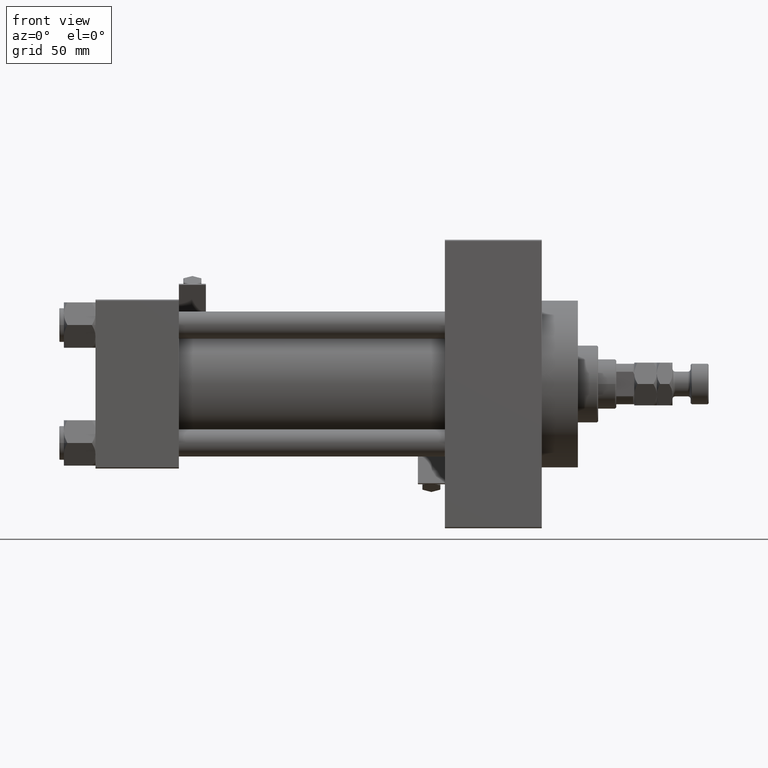
[diagram: clean part render]
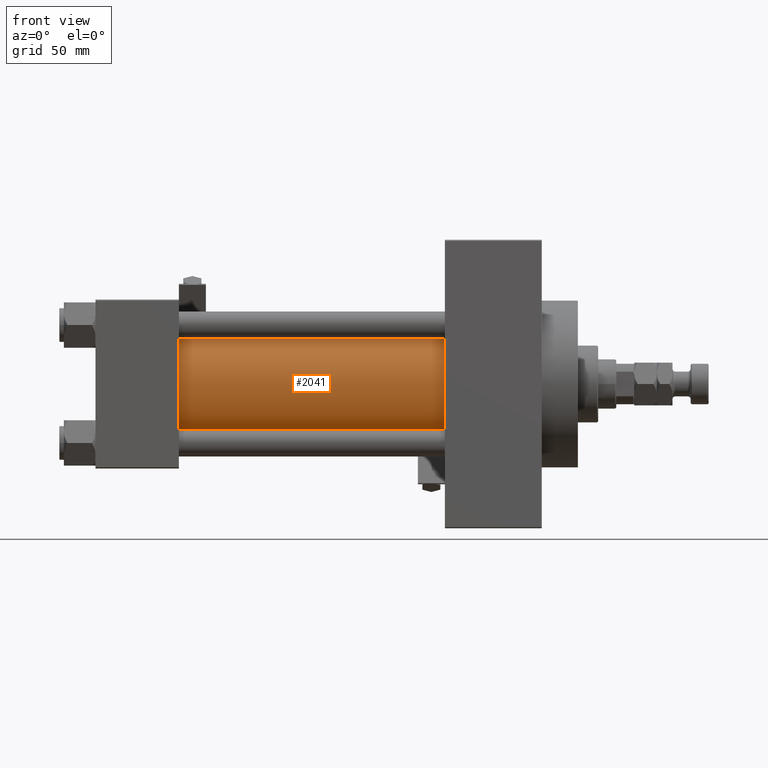
[diagram: same view with one face highlighted and labeled with its STEP entity id]
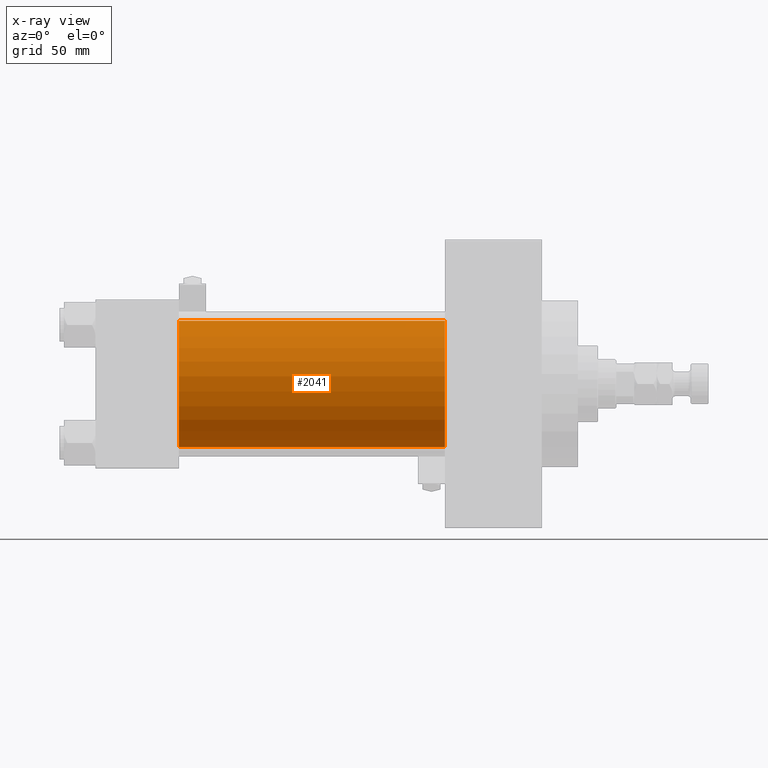
[diagram: x-ray of the same camera — body ghosted, the highlighted face saturated]
A machine part, front view. The second image highlights one B-rep face of the part: STEP entity #2041.
The next image is the same camera in x-ray: the body ghosted, the highlighted face saturated — about 0% of this face is hidden behind the body in this view.
In plain terms, the highlighted cylindrical surface (partial cylindrical patch) has radius 28 mm, axis along (-1, -0, -0).
Its self-contained STEP definition (entity closure, byte-faithful):
#843 = CARTESIAN_POINT ( 'NONE',  ( 155.0000000000000000, -2.602085213965210642E-15, 0.000000000000000000 ) ) ;
#1912 = VECTOR ( 'NONE', #42729, 1000.000000000000000 ) ;
#2041 = ADVANCED_FACE ( 'NONE', ( #5123 ), #31864, .T. ) ;
#3669 = AXIS2_PLACEMENT_3D ( 'NONE', #14880, #48718, #26242 ) ;
#4635 = DIRECTION ( 'NONE',  ( -1.000000000000000000, -0.000000000000000000, -0.000000000000000000 ) ) ;
#4957 = CIRCLE ( 'NONE', #5753, 28.00000000000000000 ) ;
#5123 = FACE_OUTER_BOUND ( 'NONE', #19141, .T. ) ;
#5753 = AXIS2_PLACEMENT_3D ( 'NONE', #21115, #36507, #17340 ) ;
#8190 = EDGE_CURVE ( 'NONE', #29297, #16912, #4957, .T. ) ;
#12117 = LINE ( 'NONE', #23728, #49090 ) ;
#14880 = CARTESIAN_POINT ( 'NONE',  ( 155.0000000000000000, -2.602085213965210642E-15, 0.000000000000000000 ) ) ;
#16912 = VERTEX_POINT ( 'NONE', #17766 ) ;
#17340 = DIRECTION ( 'NONE',  ( 0.000000000000000000, 0.000000000000000000, 1.000000000000000000 ) ) ;
#17766 = CARTESIAN_POINT ( 'NONE',  ( 37.00000000000000711, 8.269258236473784371E-16, -28.00000000000000000 ) ) ;
#18238 = ORIENTED_EDGE ( 'NONE', *, *, #33045, .T. ) ;
#18563 = AXIS2_PLACEMENT_3D ( 'NONE', #843, #4635, #39440 ) ;
#19141 = EDGE_LOOP ( 'NONE', ( #43602, #29717, #18238, #25632 ) ) ;
#21115 = CARTESIAN_POINT ( 'NONE',  ( 37.00000000000000711, -2.602085213965210642E-15, 0.000000000000000000 ) ) ;
#21538 = EDGE_CURVE ( 'NONE', #40945, #29531, #32660, .T. ) ;
#21798 = CARTESIAN_POINT ( 'NONE',  ( 155.0000000000000000, -2.602085213965210642E-15, 28.00000000000000000 ) ) ;
#23728 = CARTESIAN_POINT ( 'NONE',  ( 155.0000000000000000, -2.602085213965210642E-15, 28.00000000000000000 ) ) ;
#25632 = ORIENTED_EDGE ( 'NONE', *, *, #8190, .T. ) ;
#26242 = DIRECTION ( 'NONE',  ( 0.000000000000000000, 0.000000000000000000, -1.000000000000000000 ) ) ;
#27337 = CARTESIAN_POINT ( 'NONE',  ( 37.00000000000000711, -2.602085213965210642E-15, 28.00000000000000000 ) ) ;
#29297 = VERTEX_POINT ( 'NONE', #27337 ) ;
#29531 = VERTEX_POINT ( 'NONE', #48773 ) ;
#29717 = ORIENTED_EDGE ( 'NONE', *, *, #21538, .F. ) ;
#31864 = CYLINDRICAL_SURFACE ( 'NONE', #18563, 28.00000000000000000 ) ;
#32660 = CIRCLE ( 'NONE', #3669, 28.00000000000000000 ) ;
#33045 = EDGE_CURVE ( 'NONE', #40945, #29297, #12117, .T. ) ;
#36507 = DIRECTION ( 'NONE',  ( 1.000000000000000000, -0.000000000000000000, 0.000000000000000000 ) ) ;
#39440 = DIRECTION ( 'NONE',  ( 0.000000000000000000, 0.000000000000000000, 1.000000000000000000 ) ) ;
#40945 = VERTEX_POINT ( 'NONE', #21798 ) ;
#42729 = DIRECTION ( 'NONE',  ( -1.000000000000000000, -0.000000000000000000, -0.000000000000000000 ) ) ;
#42910 = DIRECTION ( 'NONE',  ( -1.000000000000000000, -0.000000000000000000, -0.000000000000000000 ) ) ;
#43602 = ORIENTED_EDGE ( 'NONE', *, *, #43792, .F. ) ;
#43792 = EDGE_CURVE ( 'NONE', #29531, #16912, #46527, .T. ) ;
#46527 = LINE ( 'NONE', #47273, #1912 ) ;
#47273 = CARTESIAN_POINT ( 'NONE',  ( 155.0000000000000000, 8.269258236473784371E-16, -28.00000000000000000 ) ) ;
#48718 = DIRECTION ( 'NONE',  ( 1.000000000000000000, 0.000000000000000000, 0.000000000000000000 ) ) ;
#48773 = CARTESIAN_POINT ( 'NONE',  ( 155.0000000000000000, 8.269258236473784371E-16, -28.00000000000000000 ) ) ;
#49090 = VECTOR ( 'NONE', #42910, 1000.000000000000000 ) ;